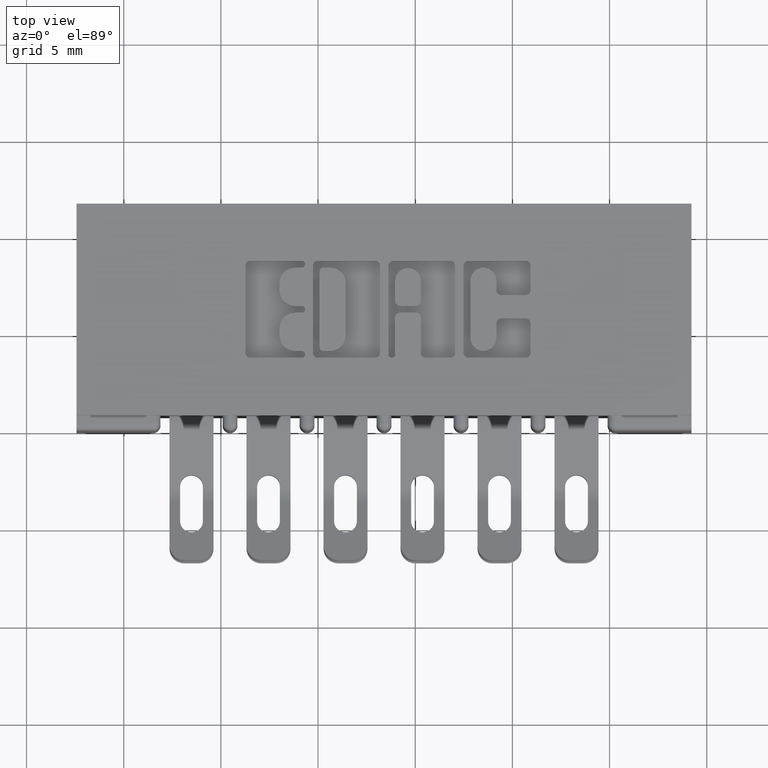
[diagram: clean part render]
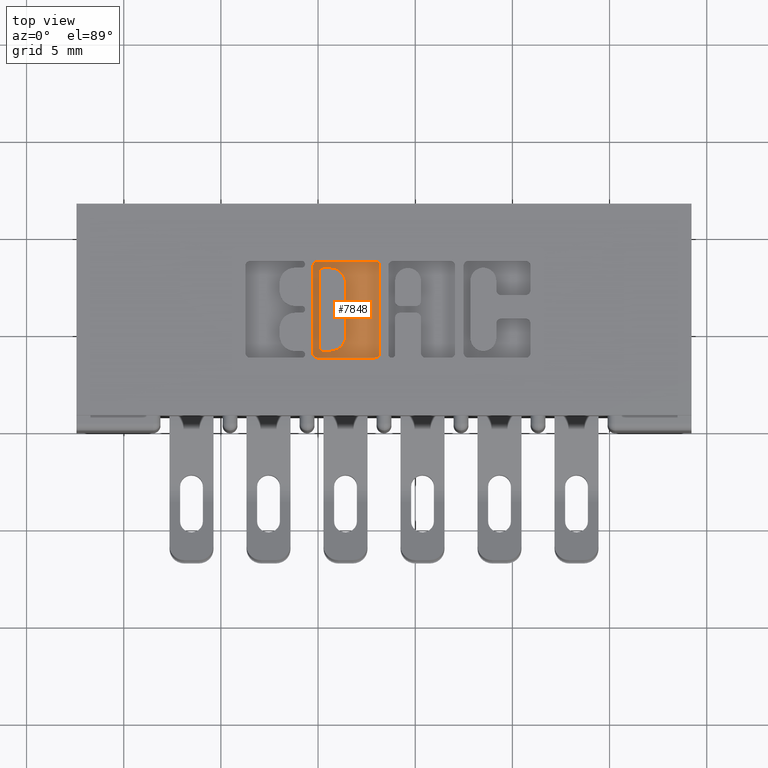
[diagram: same view with one face highlighted and labeled with its STEP entity id]
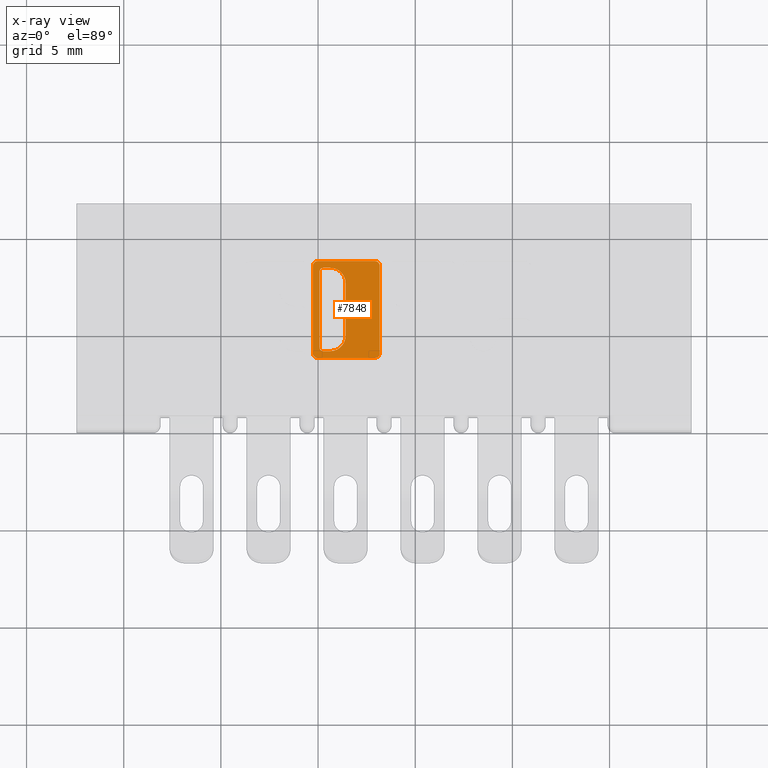
[diagram: x-ray of the same camera — body ghosted, the highlighted face saturated]
A machine part, top view. The second image highlights one B-rep face of the part: STEP entity #7848.
The next image is the same camera in x-ray: the body ghosted, the highlighted face saturated — about 0% of this face is hidden behind the body in this view.
In plain terms, the highlighted planar face has unit normal (0, 0, 1).
Its self-contained STEP definition (entity closure, byte-faithful):
#41 = CARTESIAN_POINT ( 'NONE',  ( 0.7867707099630104600, 0.3338410318342129300, -0.01000000000000000000 ) ) ;
#66 = CARTESIAN_POINT ( 'NONE',  ( 0.8118006689826737800, 0.1924953808994873400, -0.01000000000000000000 ) ) ;
#69 = DIRECTION ( 'NONE',  ( 1.000000000000000000, 0.0000000000000000000, 0.0000000000000000000 ) ) ;
#96 = LINE ( 'NONE', #2122, #913 ) ;
#120 = EDGE_CURVE ( 'NONE', #2028, #5043, #279, .T. ) ;
#130 = DIRECTION ( 'NONE',  ( -0.0000000000000000000, 0.0000000000000000000, 1.000000000000000000 ) ) ;
#186 = CARTESIAN_POINT ( 'NONE',  ( 0.0000000000000000000, 0.3299147637527272700, -0.01000000000000000000 ) ) ;
#235 = LINE ( 'NONE', #186, #630 ) ;
#263 = ORIENTED_EDGE ( 'NONE', *, *, #7397, .F. ) ;
#279 = CIRCLE ( 'NONE', #3329, 0.009815670203806754800 ) ;
#459 = LINE ( 'NONE', #1259, #7524 ) ;
#582 = CIRCLE ( 'NONE', #10170, 0.009815670203840902800 ) ;
#630 = VECTOR ( 'NONE', #8877, 39.37007874015748100 ) ;
#663 = ORIENTED_EDGE ( 'NONE', *, *, #3858, .T. ) ;
#779 = DIRECTION ( 'NONE',  ( 1.000000000000000000, 0.0000000000000000000, 0.0000000000000000000 ) ) ;
#803 = AXIS2_PLACEMENT_3D ( 'NONE', #3038, #9166, #10893 ) ;
#873 = AXIS2_PLACEMENT_3D ( 'NONE', #1032, #2005, #1925 ) ;
#913 = VECTOR ( 'NONE', #7368, 39.37007874015748100 ) ;
#946 = DIRECTION ( 'NONE',  ( -0.0000000000000000000, 0.0000000000000000000, 1.000000000000000000 ) ) ;
#951 = CIRCLE ( 'NONE', #803, 0.006870969142667693000 ) ;
#960 = ORIENTED_EDGE ( 'NONE', *, *, #10066, .F. ) ;
#1032 = CARTESIAN_POINT ( 'NONE',  ( 0.9025956183678624000, 0.1571589681657927500, -0.01000000000000000000 ) ) ;
#1259 = CARTESIAN_POINT ( 'NONE',  ( 0.7769550397591695700, 0.0000000000000000000, -0.01000000000000000000 ) ) ;
#1271 = DIRECTION ( 'NONE',  ( 1.000000000000000000, 0.0000000000000000000, 0.0000000000000000000 ) ) ;
#1316 = CARTESIAN_POINT ( 'NONE',  ( 0.9124112885716693100, 0.1571589681657927500, -0.01000000000000000000 ) ) ;
#1463 = EDGE_LOOP ( 'NONE', ( #5529, #663, #263, #10992, #4533, #9917, #960, #6342 ) ) ;
#1479 = EDGE_CURVE ( 'NONE', #5477, #2850, #96, .T. ) ;
#1491 = CARTESIAN_POINT ( 'NONE',  ( 0.7867707099630104600, 0.3436567020380538200, -0.01000000000000000000 ) ) ;
#1655 = CARTESIAN_POINT ( 'NONE',  ( 0.7975679471871622800, 0.1610852362473171000, -0.01000000000000000000 ) ) ;
#1925 = DIRECTION ( 'NONE',  ( 1.000000000000000000, 0.0000000000000000000, 0.0000000000000000000 ) ) ;
#2005 = DIRECTION ( 'NONE',  ( -0.0000000000000000000, 0.0000000000000000000, 1.000000000000000000 ) ) ;
#2022 = CARTESIAN_POINT ( 'NONE',  ( 0.8118006689826782200, 0.3299147637527272700, -0.01000000000000000000 ) ) ;
#2028 = VERTEX_POINT ( 'NONE', #6311 ) ;
#2122 = CARTESIAN_POINT ( 'NONE',  ( 0.9124112885716693100, 0.0000000000000000000, -0.01000000000000000000 ) ) ;
#2141 = CARTESIAN_POINT ( 'NONE',  ( 0.8118006689826737800, 0.1610852362473171000, -0.01000000000000000000 ) ) ;
#2321 = EDGE_CURVE ( 'NONE', #6197, #7114, #10524, .T. ) ;
#2346 = CARTESIAN_POINT ( 'NONE',  ( 0.7906969780444990100, 0.1679562053899803200, -0.01000000000000000000 ) ) ;
#2492 = DIRECTION ( 'NONE',  ( 0.0000000000000000000, 1.000000000000000000, -0.0000000000000000000 ) ) ;
#2671 = VERTEX_POINT ( 'NONE', #2141 ) ;
#2850 = VERTEX_POINT ( 'NONE', #10193 ) ;
#2878 = VERTEX_POINT ( 'NONE', #1655 ) ;
#2930 = EDGE_CURVE ( 'NONE', #2671, #10469, #8486, .T. ) ;
#2954 = DIRECTION ( 'NONE',  ( 0.0000000000000000000, -1.000000000000000000, 0.0000000000000000000 ) ) ;
#3018 = AXIS2_PLACEMENT_3D ( 'NONE', #66, #6929, #6179 ) ;
#3038 = CARTESIAN_POINT ( 'NONE',  ( 0.7975679471871667300, 0.3230437946100595500, -0.01000000000000000000 ) ) ;
#3087 = LINE ( 'NONE', #5902, #8933 ) ;
#3114 = ORIENTED_EDGE ( 'NONE', *, *, #5165, .T. ) ;
#3186 = DIRECTION ( 'NONE',  ( -1.000000000000000000, 0.0000000000000000000, 0.0000000000000000000 ) ) ;
#3329 = AXIS2_PLACEMENT_3D ( 'NONE', #8567, #4294, #5235 ) ;
#3432 = CARTESIAN_POINT ( 'NONE',  ( 0.9025956183678624000, 0.1473432979619860000, -0.01000000000000000000 ) ) ;
#3528 = EDGE_CURVE ( 'NONE', #5070, #10469, #8882, .T. ) ;
#3561 = EDGE_CURVE ( 'NONE', #8181, #2028, #459, .T. ) ;
#3570 = FACE_BOUND ( 'NONE', #1463, .T. ) ;
#3600 = LINE ( 'NONE', #7693, #5105 ) ;
#3602 = VERTEX_POINT ( 'NONE', #2022 ) ;
#3759 = AXIS2_PLACEMENT_3D ( 'NONE', #5347, #130, #8823 ) ;
#3858 = EDGE_CURVE ( 'NONE', #3864, #3602, #235, .T. ) ;
#3864 = VERTEX_POINT ( 'NONE', #8040 ) ;
#4081 = CARTESIAN_POINT ( 'NONE',  ( 0.0000000000000000000, 0.3436567020380538200, -0.01000000000000000000 ) ) ;
#4294 = DIRECTION ( 'NONE',  ( -0.0000000000000000000, 0.0000000000000000000, 1.000000000000000000 ) ) ;
#4331 = AXIS2_PLACEMENT_3D ( 'NONE', #8798, #9749, #69 ) ;
#4354 = EDGE_CURVE ( 'NONE', #2850, #6197, #4615, .T. ) ;
#4425 = DIRECTION ( 'NONE',  ( -1.000000000000000000, 0.0000000000000000000, 0.0000000000000000000 ) ) ;
#4533 = ORIENTED_EDGE ( 'NONE', *, *, #2930, .F. ) ;
#4615 = CIRCLE ( 'NONE', #3759, 0.009815670203841039800 ) ;
#4670 = ORIENTED_EDGE ( 'NONE', *, *, #4354, .T. ) ;
#4685 = CIRCLE ( 'NONE', #6742, 0.03141014465217194900 ) ;
#4946 = ORIENTED_EDGE ( 'NONE', *, *, #2321, .T. ) ;
#5020 = VERTEX_POINT ( 'NONE', #2346 ) ;
#5043 = VERTEX_POINT ( 'NONE', #8408 ) ;
#5070 = VERTEX_POINT ( 'NONE', #9368 ) ;
#5105 = VECTOR ( 'NONE', #2492, 39.37007874015748100 ) ;
#5118 = CARTESIAN_POINT ( 'NONE',  ( 0.8432108136348439600, 0.1924953808994873400, -0.01000000000000000000 ) ) ;
#5165 = EDGE_CURVE ( 'NONE', #5043, #5211, #3087, .T. ) ;
#5185 = ORIENTED_EDGE ( 'NONE', *, *, #3561, .T. ) ;
#5211 = VERTEX_POINT ( 'NONE', #3432 ) ;
#5228 = CARTESIAN_POINT ( 'NONE',  ( 0.7906969780444990100, 0.3230437946100595500, -0.01000000000000000000 ) ) ;
#5235 = DIRECTION ( 'NONE',  ( 1.000000000000000000, 0.0000000000000000000, 0.0000000000000000000 ) ) ;
#5347 = CARTESIAN_POINT ( 'NONE',  ( 0.9025956183678282000, 0.3338410318342128200, -0.01000000000000000000 ) ) ;
#5477 = VERTEX_POINT ( 'NONE', #1316 ) ;
#5529 = ORIENTED_EDGE ( 'NONE', *, *, #9035, .F. ) ;
#5690 = VECTOR ( 'NONE', #3186, 39.37007874015748100 ) ;
#5872 = ORIENTED_EDGE ( 'NONE', *, *, #1479, .T. ) ;
#5902 = CARTESIAN_POINT ( 'NONE',  ( 0.0000000000000000000, 0.1473432979619860000, -0.01000000000000000000 ) ) ;
#6179 = DIRECTION ( 'NONE',  ( 1.000000000000000000, 0.0000000000000000000, 0.0000000000000000000 ) ) ;
#6197 = VERTEX_POINT ( 'NONE', #6499 ) ;
#6217 = CARTESIAN_POINT ( 'NONE',  ( 0.7769550397591695700, 0.3338410318342129300, -0.01000000000000000000 ) ) ;
#6311 = CARTESIAN_POINT ( 'NONE',  ( 0.7769550397591695700, 0.1571589681657927500, -0.01000000000000000000 ) ) ;
#6342 = ORIENTED_EDGE ( 'NONE', *, *, #6513, .T. ) ;
#6499 = CARTESIAN_POINT ( 'NONE',  ( 0.9025956183678963700, 0.3436567020380538200, -0.01000000000000000000 ) ) ;
#6513 = EDGE_CURVE ( 'NONE', #5020, #7202, #3600, .T. ) ;
#6648 = PLANE ( 'NONE',  #9394 ) ;
#6742 = AXIS2_PLACEMENT_3D ( 'NONE', #9136, #10815, #1271 ) ;
#6799 = EDGE_LOOP ( 'NONE', ( #5872, #4670, #4946, #10355, #5185, #10374, #3114, #9950 ) ) ;
#6929 = DIRECTION ( 'NONE',  ( -0.0000000000000000000, 0.0000000000000000000, 1.000000000000000000 ) ) ;
#7007 = DIRECTION ( 'NONE',  ( 1.000000000000000000, 0.0000000000000000000, 0.0000000000000000000 ) ) ;
#7114 = VERTEX_POINT ( 'NONE', #1491 ) ;
#7202 = VERTEX_POINT ( 'NONE', #5228 ) ;
#7368 = DIRECTION ( 'NONE',  ( 0.0000000000000000000, 1.000000000000000000, -0.0000000000000000000 ) ) ;
#7397 = EDGE_CURVE ( 'NONE', #5070, #3602, #4685, .T. ) ;
#7524 = VECTOR ( 'NONE', #2954, 39.37007874015748100 ) ;
#7577 = EDGE_CURVE ( 'NONE', #7114, #8181, #582, .T. ) ;
#7693 = CARTESIAN_POINT ( 'NONE',  ( 0.7906969780444990100, 0.0000000000000000000, -0.01000000000000000000 ) ) ;
#7848 = ADVANCED_FACE ( 'NONE', ( #3570, #10208 ), #6648, .T. ) ;
#8040 = CARTESIAN_POINT ( 'NONE',  ( 0.7975679471871667300, 0.3299147637527272700, -0.01000000000000000000 ) ) ;
#8132 = EDGE_CURVE ( 'NONE', #5211, #5477, #9680, .T. ) ;
#8181 = VERTEX_POINT ( 'NONE', #6217 ) ;
#8343 = DIRECTION ( 'NONE',  ( -0.0000000000000000000, 0.0000000000000000000, 1.000000000000000000 ) ) ;
#8408 = CARTESIAN_POINT ( 'NONE',  ( 0.7867707099629762700, 0.1473432979619860000, -0.01000000000000000000 ) ) ;
#8486 = CIRCLE ( 'NONE', #3018, 0.03141014465217017300 ) ;
#8567 = CARTESIAN_POINT ( 'NONE',  ( 0.7867707099629762700, 0.1571589681657927500, -0.01000000000000000000 ) ) ;
#8643 = LINE ( 'NONE', #10464, #8921 ) ;
#8798 = CARTESIAN_POINT ( 'NONE',  ( 0.7975679471871622800, 0.1679562053899803200, -0.01000000000000000000 ) ) ;
#8823 = DIRECTION ( 'NONE',  ( 1.000000000000000000, 0.0000000000000000000, 0.0000000000000000000 ) ) ;
#8877 = DIRECTION ( 'NONE',  ( 1.000000000000000000, 0.0000000000000000000, 0.0000000000000000000 ) ) ;
#8882 = LINE ( 'NONE', #10734, #9168 ) ;
#8921 = VECTOR ( 'NONE', #4425, 39.37007874015748100 ) ;
#8933 = VECTOR ( 'NONE', #779, 39.37007874015748100 ) ;
#8977 = CIRCLE ( 'NONE', #4331, 0.006870969142663185300 ) ;
#9035 = EDGE_CURVE ( 'NONE', #3864, #7202, #951, .T. ) ;
#9123 = CARTESIAN_POINT ( 'NONE',  ( 0.0000000000000000000, 0.0000000000000000000, -0.01000000000000000000 ) ) ;
#9136 = CARTESIAN_POINT ( 'NONE',  ( 0.8118006689826720000, 0.2985046191005553700, -0.01000000000000000000 ) ) ;
#9166 = DIRECTION ( 'NONE',  ( -0.0000000000000000000, 0.0000000000000000000, 1.000000000000000000 ) ) ;
#9168 = VECTOR ( 'NONE', #9872, 39.37007874015748100 ) ;
#9231 = DIRECTION ( 'NONE',  ( 1.000000000000000000, 0.0000000000000000000, 0.0000000000000000000 ) ) ;
#9368 = CARTESIAN_POINT ( 'NONE',  ( 0.8432108136348439600, 0.2985046191005553700, -0.01000000000000000000 ) ) ;
#9394 = AXIS2_PLACEMENT_3D ( 'NONE', #9123, #8343, #9231 ) ;
#9680 = CIRCLE ( 'NONE', #873, 0.009815670203806891800 ) ;
#9749 = DIRECTION ( 'NONE',  ( -0.0000000000000000000, 0.0000000000000000000, 1.000000000000000000 ) ) ;
#9872 = DIRECTION ( 'NONE',  ( 0.0000000000000000000, -1.000000000000000000, 0.0000000000000000000 ) ) ;
#9917 = ORIENTED_EDGE ( 'NONE', *, *, #10892, .T. ) ;
#9950 = ORIENTED_EDGE ( 'NONE', *, *, #8132, .T. ) ;
#10066 = EDGE_CURVE ( 'NONE', #5020, #2878, #8977, .T. ) ;
#10170 = AXIS2_PLACEMENT_3D ( 'NONE', #41, #946, #7007 ) ;
#10193 = CARTESIAN_POINT ( 'NONE',  ( 0.9124112885716693100, 0.3338410318342129300, -0.01000000000000000000 ) ) ;
#10208 = FACE_OUTER_BOUND ( 'NONE', #6799, .T. ) ;
#10355 = ORIENTED_EDGE ( 'NONE', *, *, #7577, .T. ) ;
#10374 = ORIENTED_EDGE ( 'NONE', *, *, #120, .T. ) ;
#10464 = CARTESIAN_POINT ( 'NONE',  ( 0.0000000000000000000, 0.1610852362473171000, -0.01000000000000000000 ) ) ;
#10469 = VERTEX_POINT ( 'NONE', #5118 ) ;
#10524 = LINE ( 'NONE', #4081, #5690 ) ;
#10734 = CARTESIAN_POINT ( 'NONE',  ( 0.8432108136348439600, 0.0000000000000000000, -0.01000000000000000000 ) ) ;
#10815 = DIRECTION ( 'NONE',  ( -0.0000000000000000000, 0.0000000000000000000, 1.000000000000000000 ) ) ;
#10892 = EDGE_CURVE ( 'NONE', #2671, #2878, #8643, .T. ) ;
#10893 = DIRECTION ( 'NONE',  ( 1.000000000000000000, 0.0000000000000000000, 0.0000000000000000000 ) ) ;
#10992 = ORIENTED_EDGE ( 'NONE', *, *, #3528, .T. ) ;